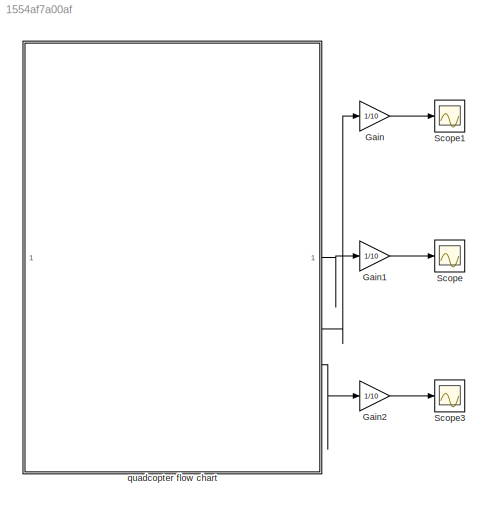
MODEL slx_1554af7a00af
KIND model
CONFIG AbsTol = auto
CONFIG EnableMultiTasking = off
CONFIG FixedStep = 0.01
CONFIG MaxStep = auto
CONFIG MinStep = auto
CONFIG RelTol = auto
CONFIG SampleTimeConstraint = Unconstrained
CONFIG SolverName = ode4
CONFIG StartTime = 0.0
CONFIG StopTime = 35
BLOCK [Gain] Gain
  Gain = 1/10
BLOCK [Gain] Gain1
  Gain = 1/10
BLOCK [Gain] Gain2
  Gain = 1/10
BLOCK [Scope] Scope
  Floating = off
  NumInputPorts = 1
  ScopeSpecificationString = Simulink.scopes.TimeScopeBlockCfg('CurrentConfiguration', extmgr.ConfigurationSet(extmgr.Configuration('Core','General UI',true),extmgr.Configuration('Core','Source UI',true),extmgr.Configuration('Sources','WiredSimulink',true,'DataLoggingVariableName','ScopeData9'),extmgr.Configuration('Visuals','Time Domain',true,'SerializedDisplays',{struct('MinYLimReal','-6.2375','MaxYLimReal','56.1375','YLabe...<+1395ch>
BLOCK [Scope] Scope1
  Floating = off
  NumInputPorts = 1
  ScopeSpecificationString = Simulink.scopes.TimeScopeBlockCfg('CurrentConfiguration', extmgr.ConfigurationSet(extmgr.Configuration('Core','General UI',true),extmgr.Configuration('Core','Source UI',true),extmgr.Configuration('Sources','WiredSimulink',true,'DataLoggingVariableName','ScopeData10'),extmgr.Configuration('Visuals','Time Domain',true,'SerializedDisplays',{struct('MinYLimReal','-6.2375','MaxYLimReal','56.1375','YLab...<+1394ch>
BLOCK [Scope] Scope3
  Floating = off
  NumInputPorts = 1
  ScopeSpecificationString = Simulink.scopes.TimeScopeBlockCfg('CurrentConfiguration', extmgr.ConfigurationSet(extmgr.Configuration('Core','General UI',true),extmgr.Configuration('Core','Source UI',true),extmgr.Configuration('Sources','WiredSimulink',true),extmgr.Configuration('Visuals','Time Domain',true,'SerializedDisplays',{struct('MinYLimReal','-6.2375','MaxYLimReal','56.1375','YLabelReal','','MinYLimMag','0.00000','MaxYL...<+1352ch>
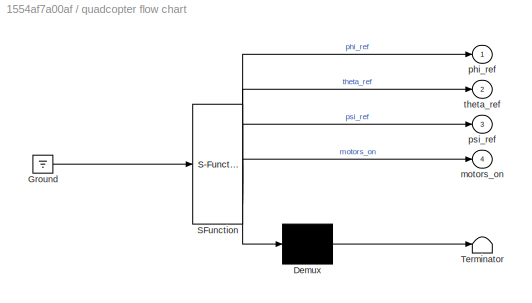
BLOCK [SubSystem] quadcopter flow chart
  ErrorFcn = Stateflow.Translate.translate
  PermitHierarchicalResolution = ExplicitOnly
  PortSchema = {"entries":[{"content":{"sides":[{"content":{},"type":"ConnectorPlacement.EquallySpacedRectSide","uuid":"56c2e152-afcd-40b1-8237-a18b8b05acf4"},{"content":{"connectorIds":["Out2","Out1","Out3","Out4"],"side":"RIGHT"},"type":"ConnectorPlacement.EquallySpacedRectSide","uuid":"7d307e09-fed8-4c03-9586-477b33e0d2f6"},{"content":{"side":"TOP"},"type":"ConnectorPlacement.EquallySpacedRectSide","uuid":"80...<+221ch>
  SFBlockType = Chart
  TreatAsAtomicUnit = on
BLOCK [Demux] quadcopter flow chart/ Demux 
  Outputs = 1
BLOCK [Ground] quadcopter flow chart/ Ground 
BLOCK [S-Function] quadcopter flow chart/ SFunction 
  EnableBusSupport = on
  FunctionName = sf_sfun
  PortCounts = [1 5]
  SFcnIsStateOwnerBlock = off
  SFunctionDeploymentMode = off
  Tag = Stateflow S-Function 3
BLOCK [Terminator] quadcopter flow chart/ Terminator 
BLOCK [Outport] quadcopter flow chart/motors_on
  Port = 4
BLOCK [Outport] quadcopter flow chart/phi_ref
BLOCK [Outport] quadcopter flow chart/psi_ref
  Port = 3
BLOCK [Outport] quadcopter flow chart/theta_ref
  Port = 2
LINE Gain1:1 -> Scope:1
LINE Gain2:1 -> Scope3:1
LINE Gain:1 -> Scope1:1
LINE quadcopter flow chart:1 -> Gain1:1
LINE quadcopter flow chart:2 -> Gain:1
LINE quadcopter flow chart:3 -> Gain2:1
CHART quadcopter flow chart states=5 transitions=9
  STATE_LABEL 'Initialization\n\nentry:\nmotor_initialization = 1;\nimu_initialization = 1;\ntheta_ramp =1;\nphi_ramp =0;\npsi_ramp =0;\nmotors_on = 1;\n'
  STATE_LABEL 'Zero_Stabalization_For_All\nentry:\ntheta_ref = 0;\nphi_ref = 0;\npsi_ref = 0;\n'
  STATE_LABEL 'Theta_ramp\ndu:\ntheta_ref = theta_ref+1;\ntheta_ramp =0;\nphi_ramp=1\n'
  STATE_LABEL 'Phi_ramp1\ndu:\nphi_ref = phi_ref+1;\nphi_ramp =0;\npsi_ramp = 1;\n'
  STATE_LABEL 'Psi_ramp2\ndu:\npsi_ref = psi_ref+1;\n'
CHART  states=0 transitions=0
